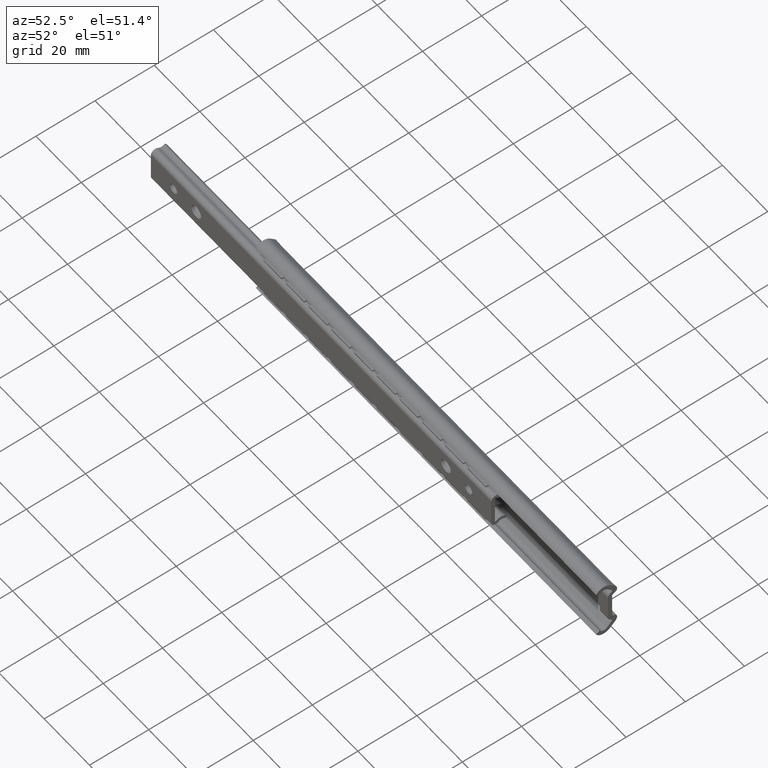
[diagram: clean part render]
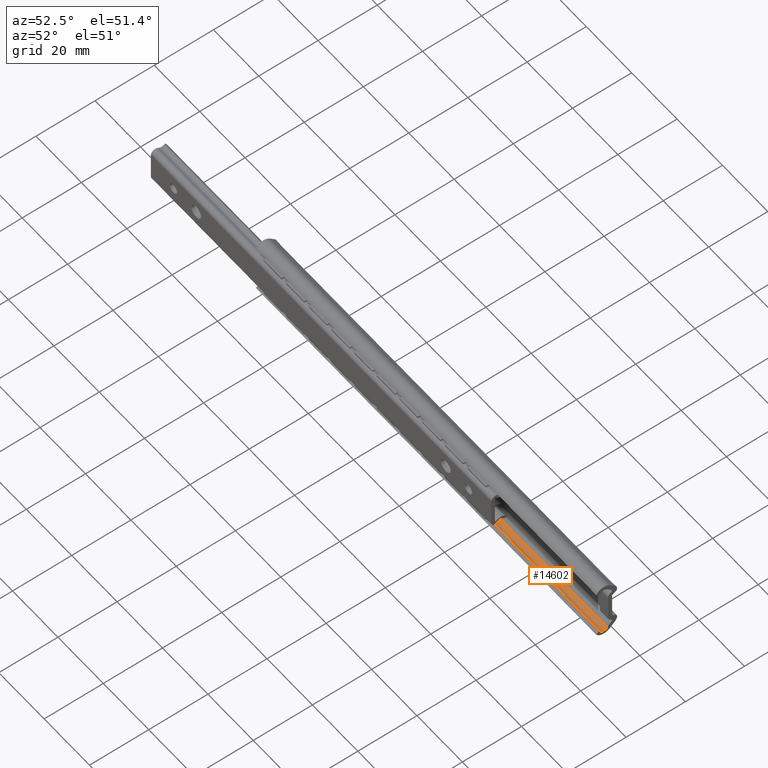
[diagram: same view with one face highlighted and labeled with its STEP entity id]
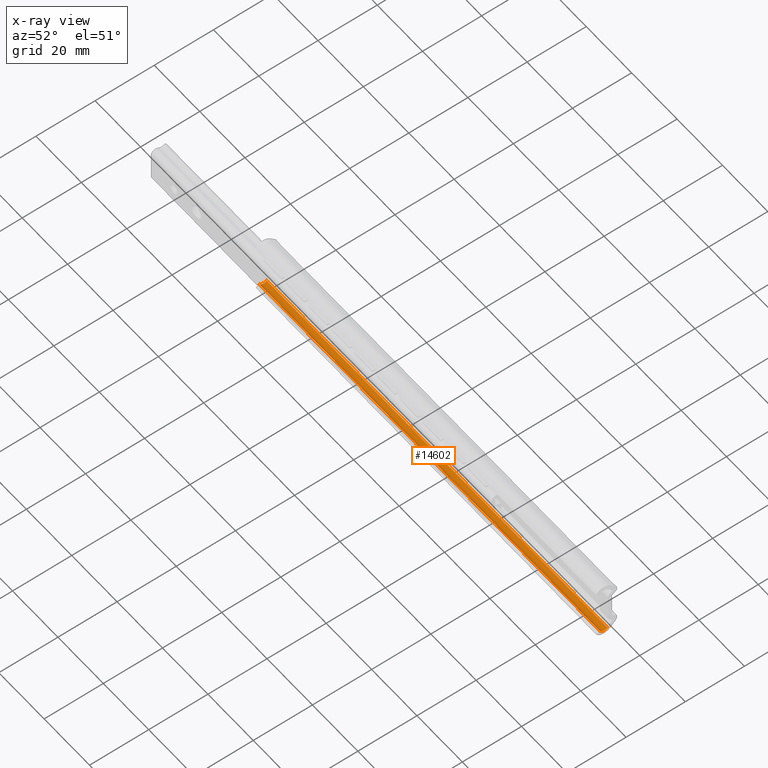
[diagram: x-ray of the same camera — body ghosted, the highlighted face saturated]
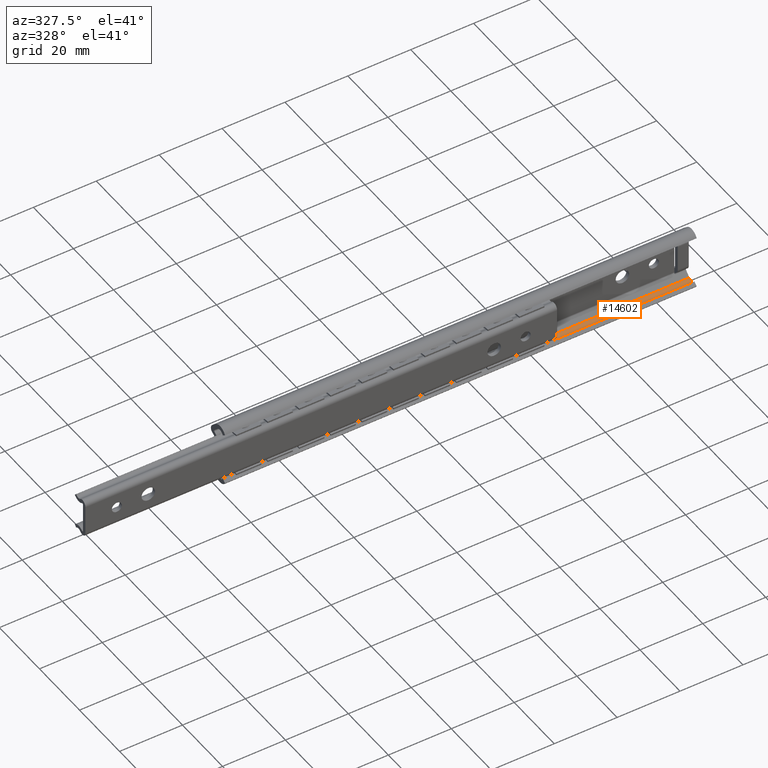
[diagram: same view with one face highlighted and labeled with its STEP entity id]
A machine part, auxiliary view. The second image highlights one B-rep face of the part: STEP entity #14602.
The next image is the same camera in x-ray: the body ghosted, the highlighted face saturated — about 0% of this face is hidden behind the body in this view.
A second angle (auxiliary view) of the same face is appended — the face is thin or edge-on in the first view.
In plain terms, the highlighted face is a freeform B-spline surface patch.
Its self-contained STEP definition (entity closure, byte-faithful):
#12783=CARTESIAN_POINT('',(150.0,-3.419692086351310,-8.175724424480430));
#12784=VERTEX_POINT('',#12783);
#12790=CARTESIAN_POINT('',(150.0,-5.943724000000290,-7.672665000000091));
#12791=VERTEX_POINT('',#12790);
#12792=CARTESIAN_POINT('',(150.0,-5.943724000000290,-7.672665000000091));
#12793=CARTESIAN_POINT('',(150.0,-5.606225820222366,-8.410744024790620));
#12794=CARTESIAN_POINT('',(150.0,-4.810298240880543,-8.569378688821482));
#12795=CARTESIAN_POINT('',(150.0,-4.014370661538718,-8.728013352852344));
#12796=CARTESIAN_POINT('',(150.0,-3.419692086351312,-8.175724424480428));
#12804=(BOUNDED_CURVE()B_SPLINE_CURVE(2,(#12792,#12793,#12794,#12795,#12796),.UNSPECIFIED.,.F.,.U.)B_SPLINE_CURVE_WITH_KNOTS((3,2,3),(0.0,0.500000000000000,1.0),.UNSPECIFIED.)CURVE()GEOMETRIC_REPRESENTATION_ITEM()RATIONAL_B_SPLINE_CURVE((1.0,0.890390739637363,1.0,0.890390739637363,1.0))REPRESENTATION_ITEM(''));
#12805=EDGE_CURVE('',#12791,#12784,#12804,.T.);
#13695=CARTESIAN_POINT('',(0.0,-5.943724000000290,-7.672665000000091));
#13696=VERTEX_POINT('',#13695);
#13702=CARTESIAN_POINT('',(0.0,-3.419692086351310,-8.175724424480430));
#13703=VERTEX_POINT('',#13702);
#13704=CARTESIAN_POINT('',(0.0,-5.943724000000290,-7.672665000000091));
#13705=CARTESIAN_POINT('',(0.0,-5.606225820222366,-8.410744024790620));
#13706=CARTESIAN_POINT('',(0.0,-4.810298240880543,-8.569378688821482));
#13707=CARTESIAN_POINT('',(0.0,-4.014370661538718,-8.728013352852344));
#13708=CARTESIAN_POINT('',(0.0,-3.419692086351312,-8.175724424480428));
#13716=(BOUNDED_CURVE()B_SPLINE_CURVE(2,(#13704,#13705,#13706,#13707,#13708),.UNSPECIFIED.,.F.,.U.)B_SPLINE_CURVE_WITH_KNOTS((3,2,3),(0.0,0.500000000000000,1.0),.UNSPECIFIED.)CURVE()GEOMETRIC_REPRESENTATION_ITEM()RATIONAL_B_SPLINE_CURVE((1.0,0.890390739637363,1.0,0.890390739637363,1.0))REPRESENTATION_ITEM(''));
#13717=EDGE_CURVE('',#13696,#13703,#13716,.T.);
#14563=CARTESIAN_POINT('',(150.0,-3.419692086351310,-8.175724424480430));
#14564=CARTESIAN_POINT('',(0.0,-3.419692086351310,-8.175724424480430));
#14565=QUASI_UNIFORM_CURVE('',1,(#14563,#14564),.UNSPECIFIED.,.F.,.U.);
#14566=EDGE_CURVE('',#12784,#13703,#14565,.T.);
#14578=CARTESIAN_POINT('',(153.750000000000000,-5.971145722488217,-7.609062245876104));
#14579=CARTESIAN_POINT('',(-3.843750000000000,-5.971145722488217,-7.609062245876104));
#14580=CARTESIAN_POINT('',(153.750000000000030,-5.052520421329217,-9.874428000601398));
#14581=CARTESIAN_POINT('',(-3.843750000000001,-5.052520421329217,-9.874428000601398));
#14582=CARTESIAN_POINT('',(153.750000000000000,-3.356644397438730,-8.113814767036189));
#14583=CARTESIAN_POINT('',(-3.843750000000000,-3.356644397438730,-8.113814767036189));
#14591=(BOUNDED_SURFACE()B_SPLINE_SURFACE(1,2,((#14578,#14580,#14582),(#14579,#14581,#14583)),.UNSPECIFIED.,.F.,.F.,.U.)B_SPLINE_SURFACE_WITH_KNOTS((2,2),(3,3),(0.0,157.593750000000000),(0.0,3.447768692704071),.UNSPECIFIED.)GEOMETRIC_REPRESENTATION_ITEM()RATIONAL_B_SPLINE_SURFACE(((1.0,0.544639035015028,1.0),(1.0,0.544639035015028,1.0)))REPRESENTATION_ITEM('')SURFACE());
#14592=CARTESIAN_POINT('',(150.0,-5.943724000000290,-7.672665000000091));
#14593=CARTESIAN_POINT('',(0.0,-5.943724000000290,-7.672665000000091));
#14594=QUASI_UNIFORM_CURVE('',1,(#14592,#14593),.UNSPECIFIED.,.F.,.U.);
#14595=EDGE_CURVE('',#12791,#13696,#14594,.T.);
#14596=ORIENTED_EDGE('',*,*,#14595,.F.);
#14597=ORIENTED_EDGE('',*,*,#12805,.T.);
#14598=ORIENTED_EDGE('',*,*,#14566,.T.);
#14599=ORIENTED_EDGE('',*,*,#13717,.F.);
#14600=EDGE_LOOP('',(#14596,#14597,#14598,#14599));
#14601=FACE_OUTER_BOUND('',#14600,.T.);
#14602=ADVANCED_FACE('',(#14601),#14591,.F.);